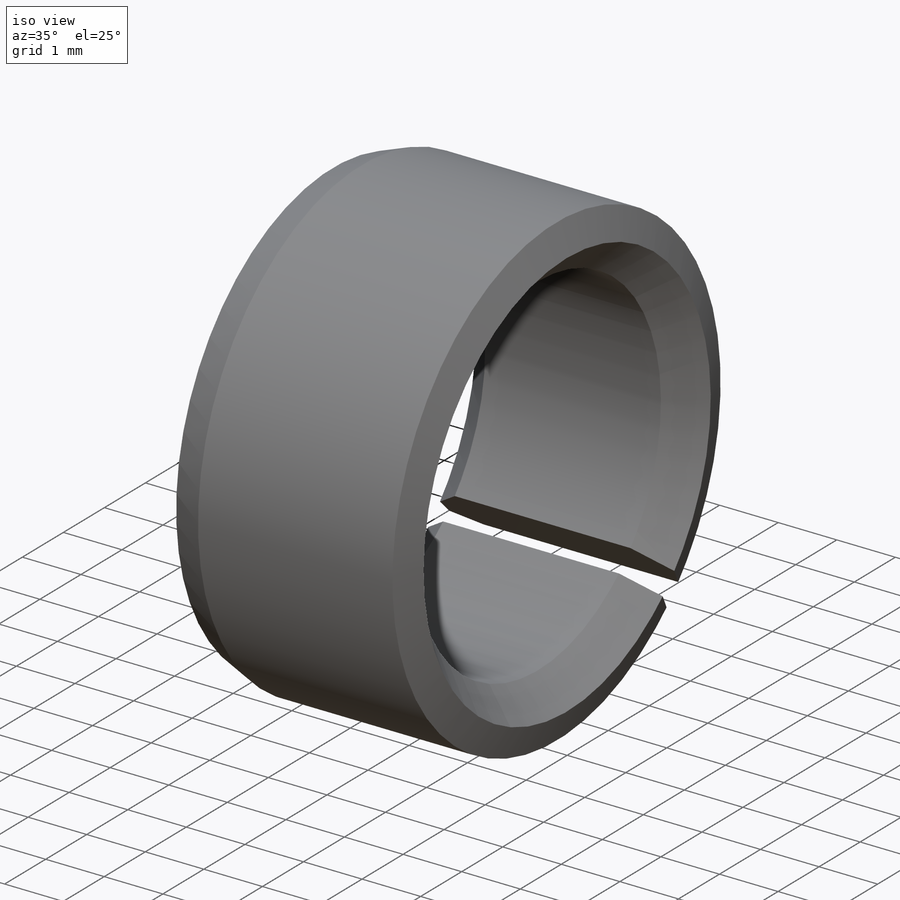
[diagram: iso view]
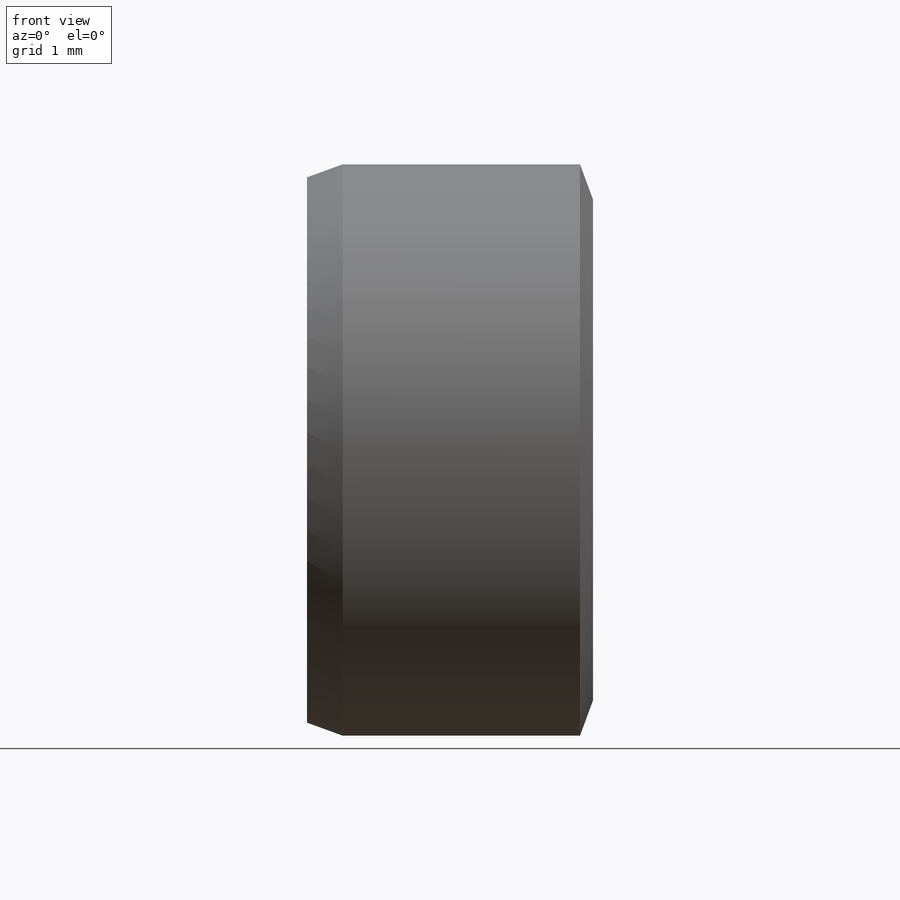
[diagram: front view]
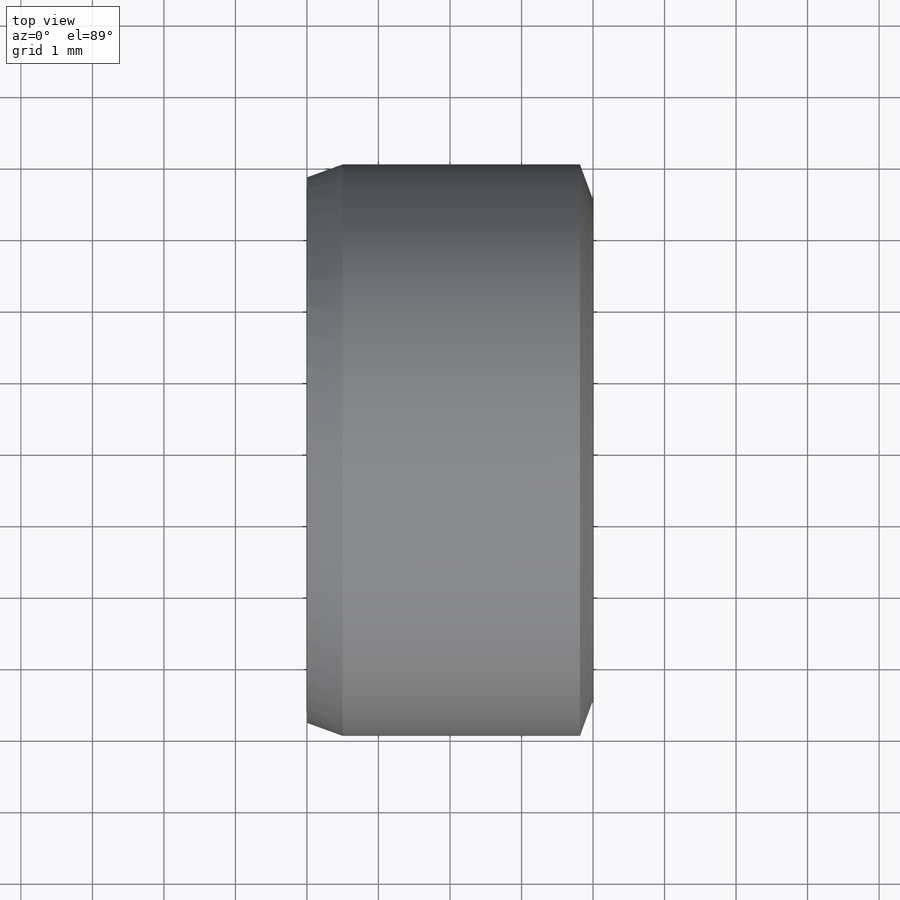
[diagram: top view]
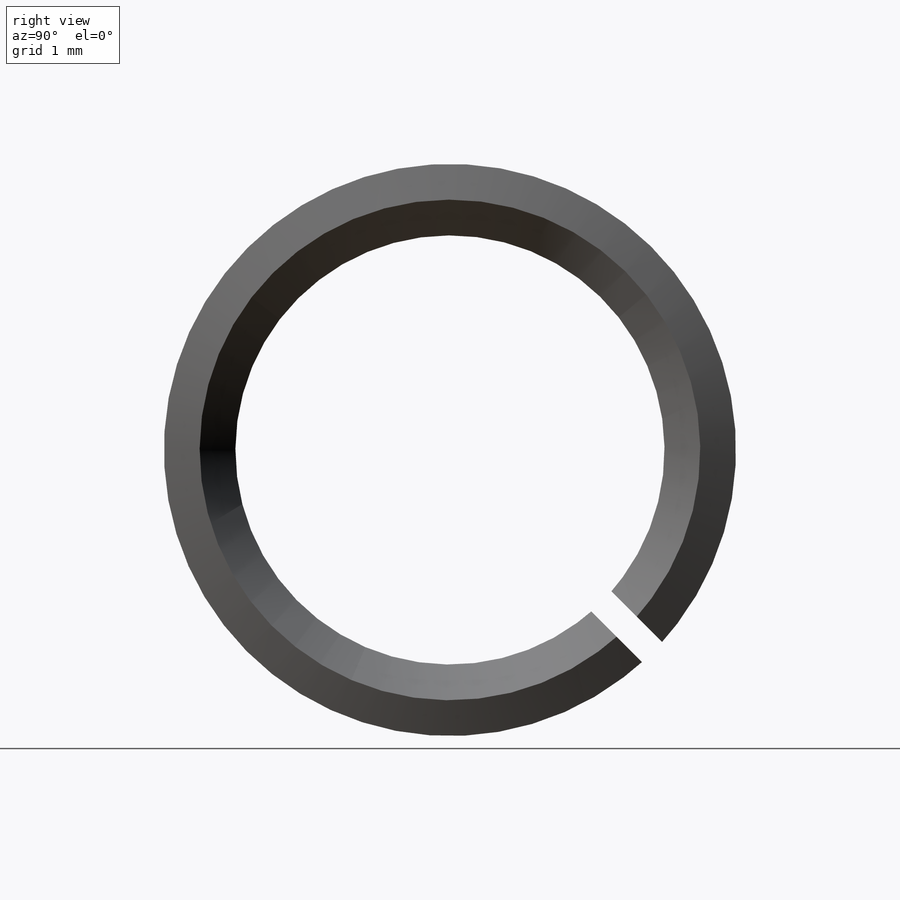
[diagram: right view]
SOLIDWORKS PART (.sldprt)
format: sldprt  version: not decoded by parser v0  size: 180,736 bytes
history: native  units: mm
features: plane x4, sketch x3, chamfer x2, material x1, revolve x1, cut_extrude x1, cut_revolve x1 (+9 scaffold rows collapsed)
feature tree (22):
  scaffold x9  (default folders/planes/origin — collapsed)
  material  "Material <not specified>"
  plane  "Plan de face"
  plane  "Plan de dessus"
  plane  "Plan de droite"
  sketch  "Esquisse1"
  revolve  "Révolution1"  Angle=360deg
  sketch  "Esquisse2"
  cut_extrude  "Enlèv. mat.-Extru.1"  Depth=4mm
  plane  "Plan1"
  sketch  "Esquisse3"
  cut_revolve  "Enlèvement de matière-Révolution1"  Angle=360deg
  chamfer  "Chanfrein1"  Distance=0.5mm Angle=45deg
  chamfer  "Chanfrein2"  Distance=0.181985mm Angle=70deg
decode coverage: 5 of 8 modeling features carry decoded parameters
note: suppression state not decoded; provenance and decode notes live in map.json
